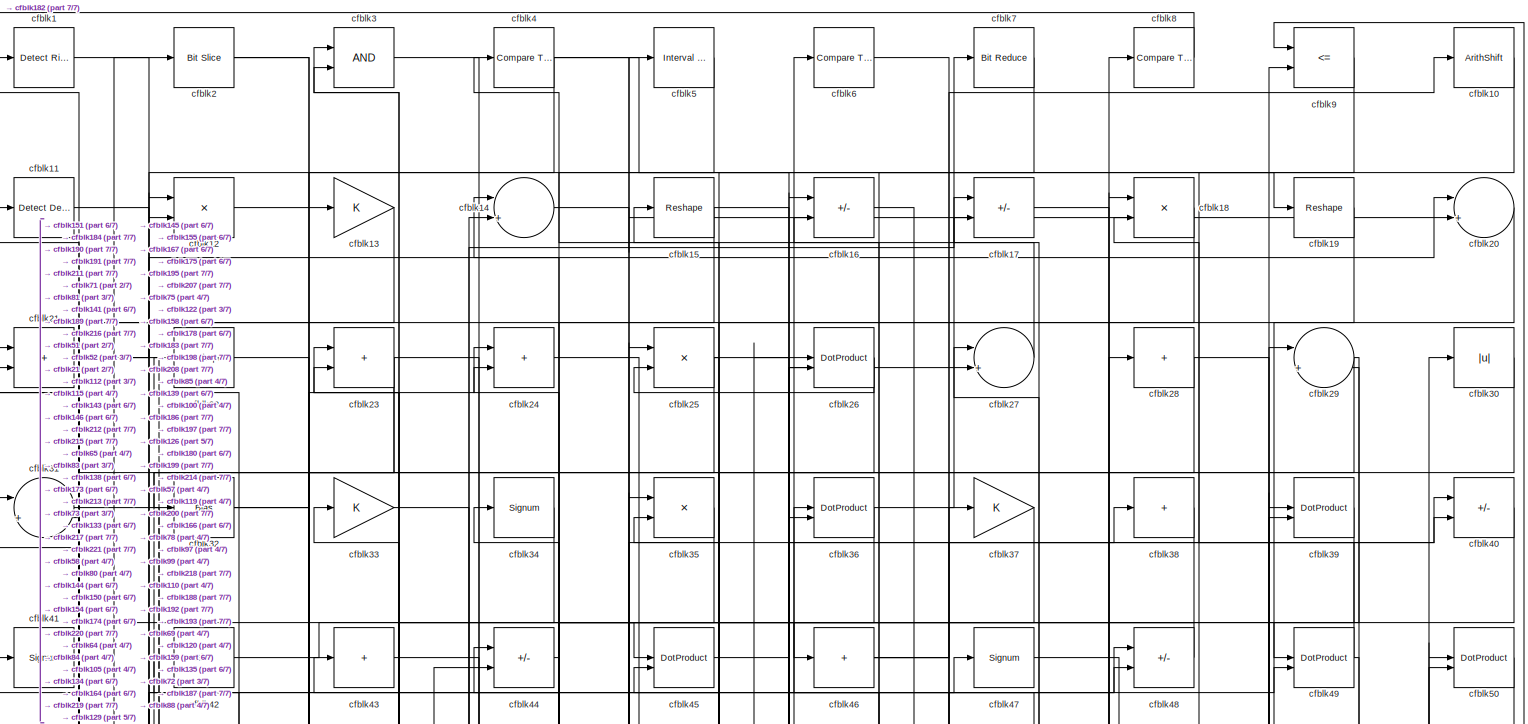
[diagram: root canvas - part 1/7, full width, top band]
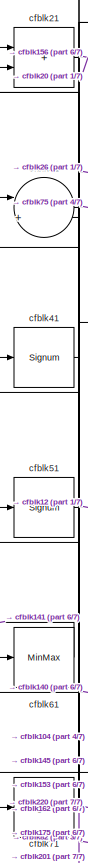
[diagram: root canvas - part 2/7, top left region]
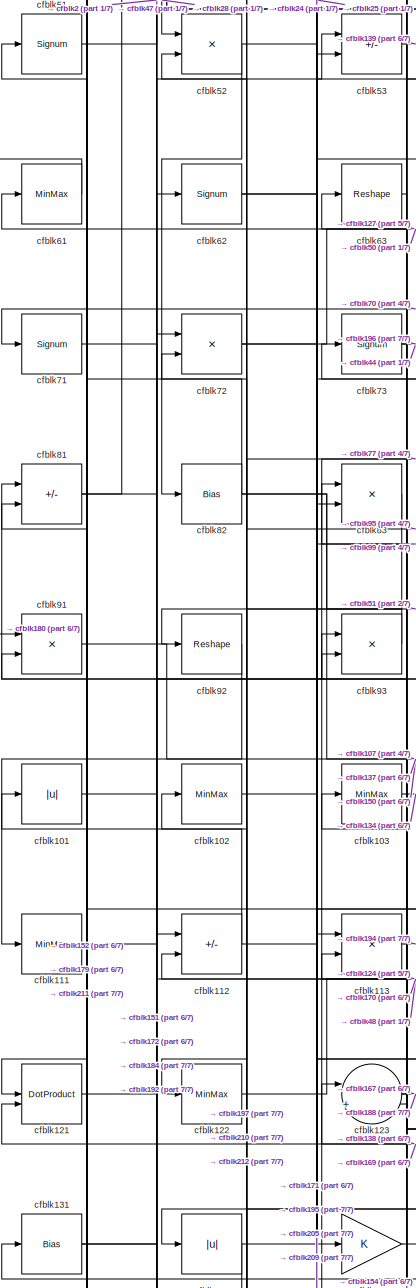
[diagram: root canvas - part 3/7, middle left region]
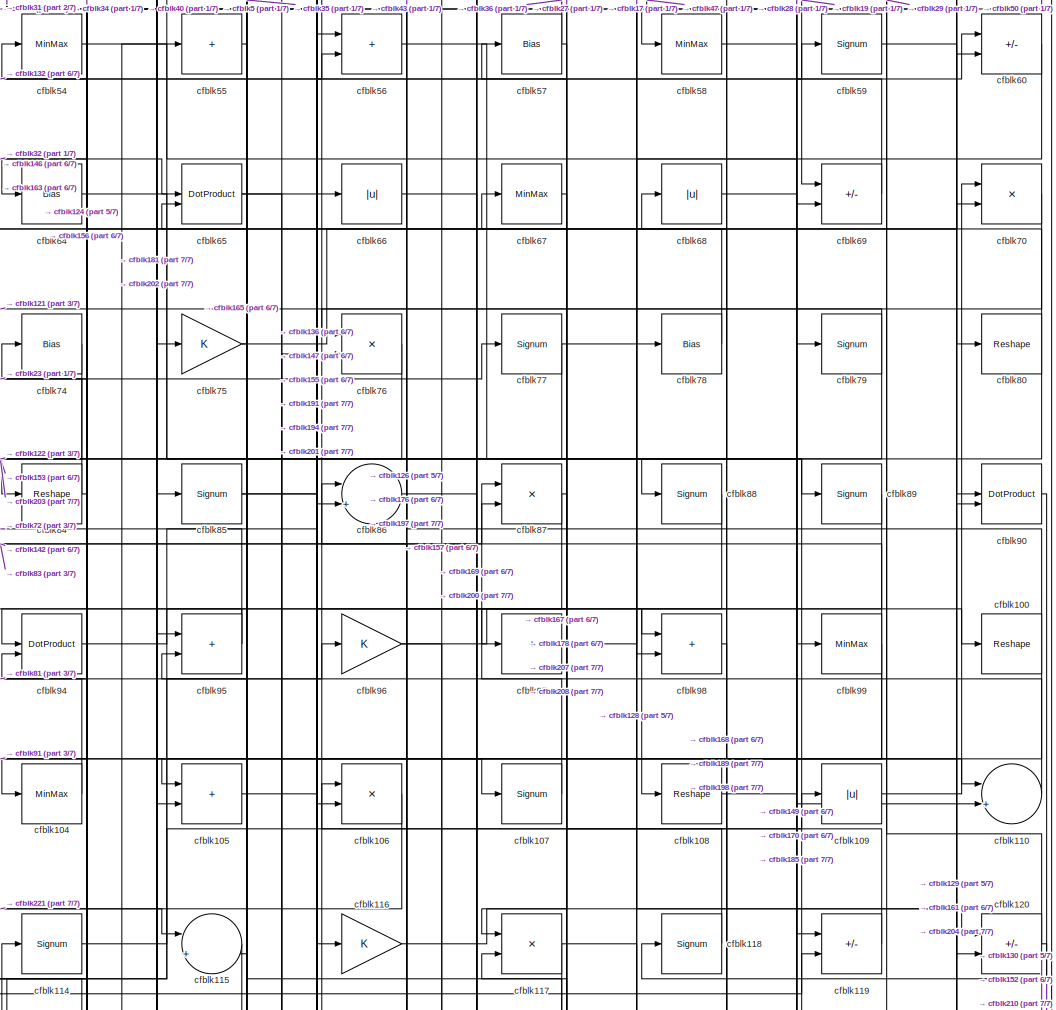
[diagram: root canvas - part 4/7, central region]
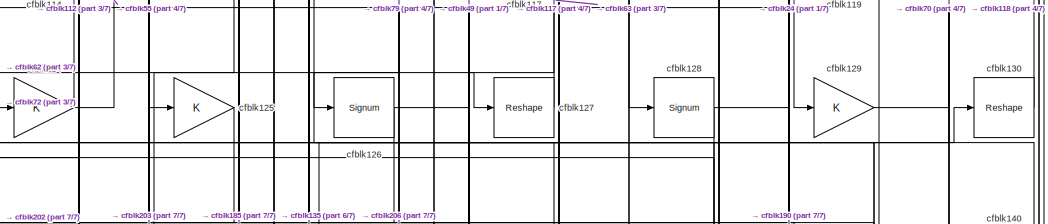
[diagram: root canvas - part 5/7, central region]
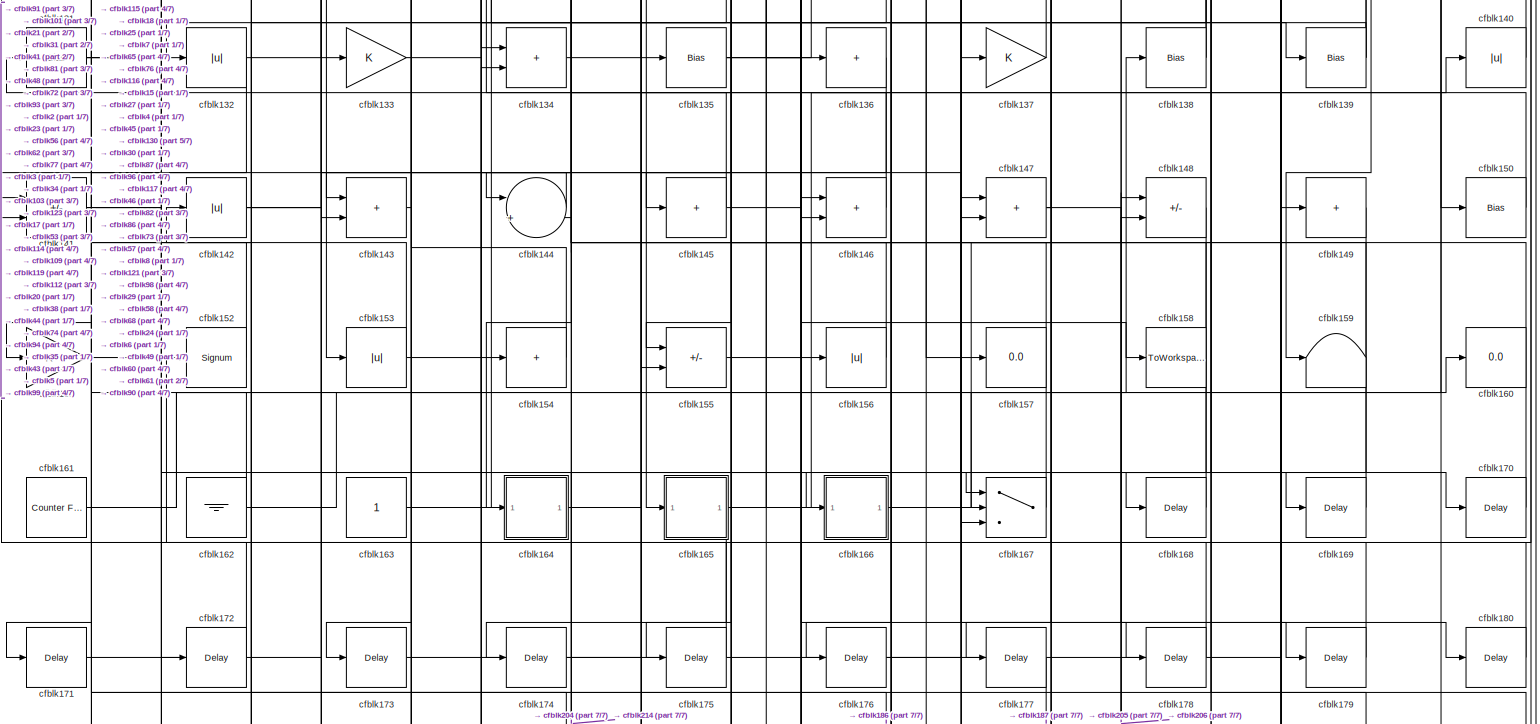
[diagram: root canvas - part 6/7, full width, bottom band]
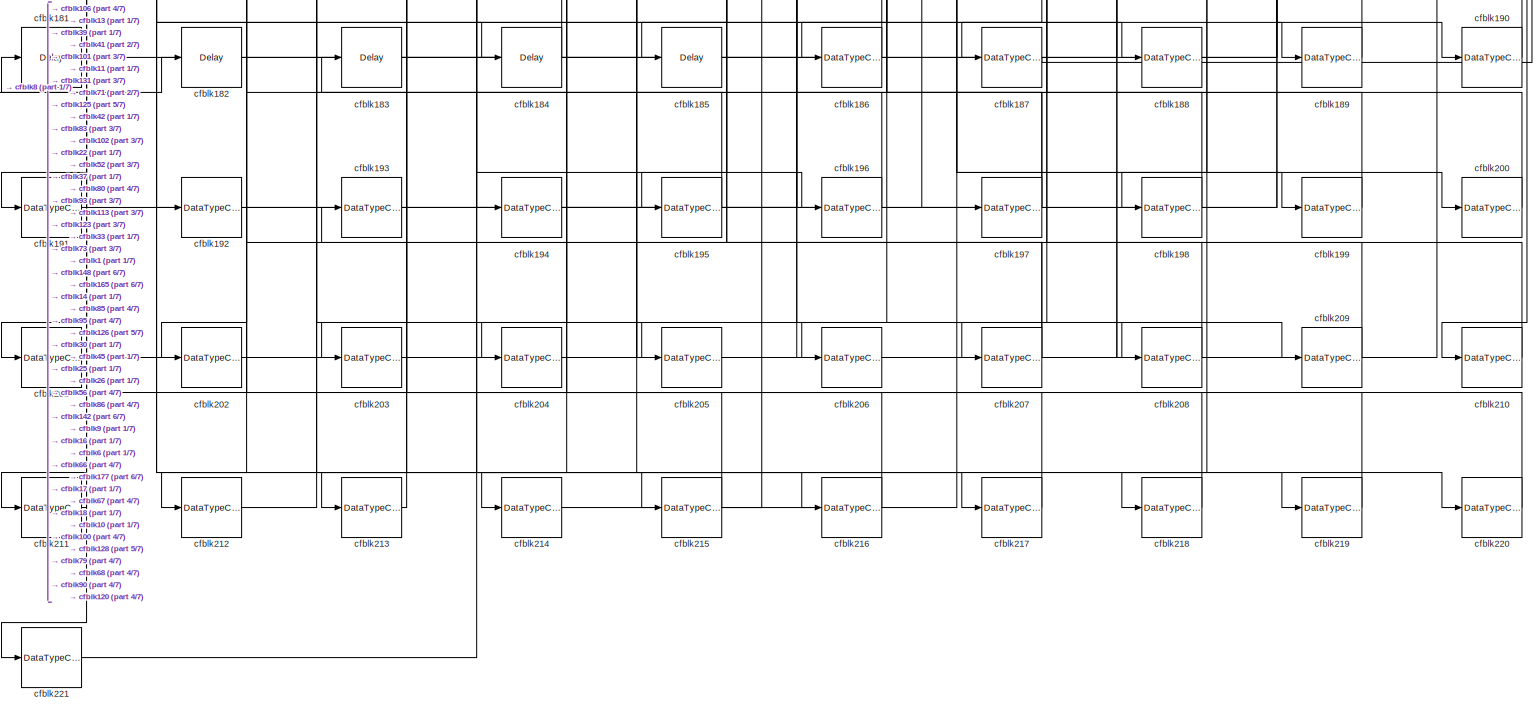
[diagram: root canvas - part 7/7, full width, bottom band]
MODEL slx_98060ab8708d
KIND model
CONFIG AbsTol = auto
CONFIG EnableMultiTasking = off
CONFIG FixedStep = auto
CONFIG MaxStep = auto
CONFIG MinStep = auto
CONFIG RelTol = 1e-3
CONFIG SampleTimeConstraint = Unconstrained
CONFIG SolverName = VariableStepAuto
CONFIG StartTime = 0.0
CONFIG StopTime = 10.0
BLOCK [Reference] cfblk1  REF=hdlsllib/Logic and Bit
Operations/Detect Rise
Positive
  SourceBlock = hdlsllib/Logic and Bit\nOperations/Detect Rise\nPositive
  SourceType = Detect Rise Positive
BLOCK [ArithShift] cfblk10
  BitShiftNumber = 8
  InputPortMap = u0
BLOCK [Reshape] cfblk100
BLOCK [Abs] cfblk101
  SaturateOnIntegerOverflow = off
BLOCK [MinMax] cfblk102
BLOCK [MinMax] cfblk103
BLOCK [MinMax] cfblk104
BLOCK [Sum] cfblk105
  IconShape = rectangular
BLOCK [Product] cfblk106
  Inputs = */
  RndMeth = Zero
  SaturateOnIntegerOverflow = on
BLOCK [Signum] cfblk107
BLOCK [Reshape] cfblk108
BLOCK [Abs] cfblk109
  SaturateOnIntegerOverflow = off
BLOCK [Reference] cfblk11  REF=simulink/Logic and Bit
Operations/Detect
Decrease
  LibrarySourceBlock = hdlsllib/Logic and Bit\nOperations/Detect\nDecrease
  SourceBlock = simulink/Logic and Bit\nOperations/Detect\nDecrease
  SourceType = Detect Decrease
BLOCK [Sum] cfblk110
  Inputs = |++
BLOCK [MinMax] cfblk111
BLOCK [Sum] cfblk112
  IconShape = rectangular
  Inputs = +-
BLOCK [Product] cfblk113
  Inputs = */
  RndMeth = Zero
  SaturateOnIntegerOverflow = on
BLOCK [Signum] cfblk114
BLOCK [Sum] cfblk115
  Inputs = |++
BLOCK [Gain] cfblk116
BLOCK [Product] cfblk117
  Inputs = */
  RndMeth = Zero
  SaturateOnIntegerOverflow = on
BLOCK [Signum] cfblk118
BLOCK [Sum] cfblk119
  IconShape = rectangular
  Inputs = +-
BLOCK [Product] cfblk12
  Inputs = */
  RndMeth = Zero
  SaturateOnIntegerOverflow = on
BLOCK [Sum] cfblk120
  IconShape = rectangular
  Inputs = +-
BLOCK [DotProduct] cfblk121
  OutDataTypeStr = Inherit: Inherit via internal rule
BLOCK [MinMax] cfblk122
BLOCK [Sum] cfblk123
  Inputs = |++
BLOCK [Gain] cfblk124
BLOCK [Gain] cfblk125
BLOCK [Signum] cfblk126
BLOCK [Reshape] cfblk127
BLOCK [Signum] cfblk128
BLOCK [Gain] cfblk129
BLOCK [Gain] cfblk13
BLOCK [Reshape] cfblk130
BLOCK [Bias] cfblk131
  Bias = 0.0
  SaturateOnIntegerOverflow = off
BLOCK [Abs] cfblk132
  SaturateOnIntegerOverflow = off
BLOCK [Gain] cfblk133
BLOCK [Sum] cfblk134
  IconShape = rectangular
BLOCK [Bias] cfblk135
  Bias = 0.0
  SaturateOnIntegerOverflow = off
BLOCK [Sum] cfblk136
  IconShape = rectangular
  Inputs = +
BLOCK [Gain] cfblk137
BLOCK [Bias] cfblk138
  Bias = 0.0
  SaturateOnIntegerOverflow = off
BLOCK [Bias] cfblk139
  Bias = 0.0
  SaturateOnIntegerOverflow = off
BLOCK [Sum] cfblk14
  Inputs = |++
BLOCK [Abs] cfblk140
  SaturateOnIntegerOverflow = off
BLOCK [Sum] cfblk141
  IconShape = rectangular
  Inputs = +-
BLOCK [Abs] cfblk142
  SaturateOnIntegerOverflow = off
BLOCK [Sum] cfblk143
  IconShape = rectangular
BLOCK [Sum] cfblk144
  Inputs = |++
BLOCK [Sum] cfblk145
  IconShape = rectangular
  Inputs = +
BLOCK [Sum] cfblk146
  IconShape = rectangular
BLOCK [Sum] cfblk147
  IconShape = rectangular
BLOCK [Sum] cfblk148
  IconShape = rectangular
  Inputs = +-
BLOCK [Sum] cfblk149
  IconShape = rectangular
  Inputs = +
BLOCK [Reshape] cfblk15
BLOCK [Bias] cfblk150
  Bias = 0.0
  SaturateOnIntegerOverflow = off
BLOCK [Gain] cfblk151
BLOCK [Signum] cfblk152
BLOCK [Abs] cfblk153
  SaturateOnIntegerOverflow = off
BLOCK [Sum] cfblk154
  IconShape = rectangular
  Inputs = +
BLOCK [Sum] cfblk155
  IconShape = rectangular
  Inputs = +-
BLOCK [Abs] cfblk156
  SaturateOnIntegerOverflow = off
BLOCK [Display] cfblk157
  Decimation = 1
BLOCK [ToWorkspace] cfblk158
  MaxDataPoints = inf
  SampleTime = -1
  SaveFormat = Timeseries
  VariableName = simout
BLOCK [Terminator] cfblk159
BLOCK [Sum] cfblk16
  IconShape = rectangular
  Inputs = +-
BLOCK [Display] cfblk160
  Decimation = 1
BLOCK [Reference] cfblk161  REF=hdlsllib/Sources/Counter
Free-Running
  SourceBlock = hdlsllib/Sources/Counter\nFree-Running
  SourceType = Counter Free-Running
BLOCK [Ground] cfblk162
BLOCK [Constant] cfblk163
  SampleTime = -1
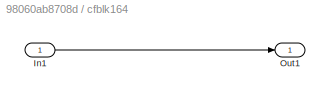
BLOCK [SubSystem] cfblk164
  LibrarySourceBlock = hdlsllib/Ports &\nSubsystems/Subsystem
BLOCK [Inport] cfblk164/In1
BLOCK [Outport] cfblk164/Out1
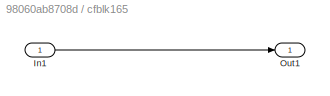
BLOCK [SubSystem] cfblk165
  LibrarySourceBlock = hdlsllib/Ports &\nSubsystems/Subsystem
BLOCK [Inport] cfblk165/In1
BLOCK [Outport] cfblk165/Out1
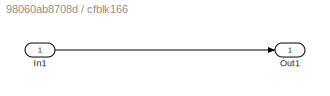
BLOCK [SubSystem] cfblk166
  LibrarySourceBlock = hdlsllib/Ports &\nSubsystems/Subsystem
BLOCK [Inport] cfblk166/In1
BLOCK [Outport] cfblk166/Out1
BLOCK [Switch] cfblk167
  InputSameDT = off
  SaturateOnIntegerOverflow = off
BLOCK [Delay] cfblk168
  InputPortMap = u0
  SampleTime = 1
BLOCK [Delay] cfblk169
  InputPortMap = u0
  SampleTime = 1
BLOCK [Sum] cfblk17
  IconShape = rectangular
  Inputs = +-
BLOCK [Delay] cfblk170
  InputPortMap = u0
  SampleTime = 1
BLOCK [Delay] cfblk171
  InputPortMap = u0
  SampleTime = 1
BLOCK [Delay] cfblk172
  InputPortMap = u0
  SampleTime = 1
BLOCK [Delay] cfblk173
  InputPortMap = u0
  SampleTime = 1
BLOCK [Delay] cfblk174
  InputPortMap = u0
  SampleTime = 1
BLOCK [Delay] cfblk175
  InputPortMap = u0
  SampleTime = 1
BLOCK [Delay] cfblk176
  InputPortMap = u0
  SampleTime = 1
BLOCK [Delay] cfblk177
  InputPortMap = u0
  SampleTime = 1
BLOCK [Delay] cfblk178
  InputPortMap = u0
  SampleTime = 1
BLOCK [Delay] cfblk179
  InputPortMap = u0
  SampleTime = 1
BLOCK [Product] cfblk18
  Inputs = */
  RndMeth = Zero
  SaturateOnIntegerOverflow = on
BLOCK [Delay] cfblk180
  InputPortMap = u0
  SampleTime = 1
BLOCK [Delay] cfblk181
  InputPortMap = u0
  SampleTime = 1
BLOCK [Delay] cfblk182
  InputPortMap = u0
  SampleTime = 1
BLOCK [Delay] cfblk183
  InputPortMap = u0
  SampleTime = 1
BLOCK [Delay] cfblk184
  InputPortMap = u0
  SampleTime = 1
BLOCK [Delay] cfblk185
  InputPortMap = u0
  SampleTime = 1
BLOCK [DataTypeConversion] cfblk186
  OutDataTypeStr = uint8
  RndMeth = Floor
  SaturateOnIntegerOverflow = off
BLOCK [DataTypeConversion] cfblk187
  OutDataTypeStr = uint8
  RndMeth = Floor
  SaturateOnIntegerOverflow = off
BLOCK [DataTypeConversion] cfblk188
  OutDataTypeStr = uint8
  RndMeth = Floor
  SaturateOnIntegerOverflow = off
BLOCK [DataTypeConversion] cfblk189
  OutDataTypeStr = uint8
  RndMeth = Floor
  SaturateOnIntegerOverflow = off
BLOCK [Reshape] cfblk19
BLOCK [DataTypeConversion] cfblk190
  OutDataTypeStr = uint8
  RndMeth = Floor
  SaturateOnIntegerOverflow = off
BLOCK [DataTypeConversion] cfblk191
  OutDataTypeStr = uint8
  RndMeth = Floor
  SaturateOnIntegerOverflow = off
BLOCK [DataTypeConversion] cfblk192
  OutDataTypeStr = uint8
  RndMeth = Floor
  SaturateOnIntegerOverflow = off
BLOCK [DataTypeConversion] cfblk193
  OutDataTypeStr = uint8
  RndMeth = Floor
  SaturateOnIntegerOverflow = off
BLOCK [DataTypeConversion] cfblk194
  OutDataTypeStr = uint8
  RndMeth = Floor
  SaturateOnIntegerOverflow = off
BLOCK [DataTypeConversion] cfblk195
  OutDataTypeStr = uint8
  RndMeth = Floor
  SaturateOnIntegerOverflow = off
BLOCK [DataTypeConversion] cfblk196
  OutDataTypeStr = uint8
  RndMeth = Floor
  SaturateOnIntegerOverflow = off
BLOCK [DataTypeConversion] cfblk197
  RndMeth = Floor
  SaturateOnIntegerOverflow = off
BLOCK [DataTypeConversion] cfblk198
  OutDataTypeStr = uint8
  RndMeth = Floor
  SaturateOnIntegerOverflow = off
BLOCK [DataTypeConversion] cfblk199
  OutDataTypeStr = uint8
  RndMeth = Floor
  SaturateOnIntegerOverflow = off
BLOCK [Reference] cfblk2  REF=hdlsllib/Logic and Bit
Operations/Bit Slice
  SourceBlock = hdlsllib/Logic and Bit\nOperations/Bit Slice
  SourceType = Bit Slice
BLOCK [Sum] cfblk20
  Inputs = |++
BLOCK [DataTypeConversion] cfblk200
  OutDataTypeStr = uint8
  RndMeth = Floor
  SaturateOnIntegerOverflow = off
BLOCK [DataTypeConversion] cfblk201
  OutDataTypeStr = uint8
  RndMeth = Floor
  SaturateOnIntegerOverflow = off
BLOCK [DataTypeConversion] cfblk202
  OutDataTypeStr = uint8
  RndMeth = Floor
  SaturateOnIntegerOverflow = off
BLOCK [DataTypeConversion] cfblk203
  OutDataTypeStr = uint8
  RndMeth = Floor
  SaturateOnIntegerOverflow = off
BLOCK [DataTypeConversion] cfblk204
  OutDataTypeStr = uint8
  RndMeth = Floor
  SaturateOnIntegerOverflow = off
BLOCK [DataTypeConversion] cfblk205
  OutDataTypeStr = uint8
  RndMeth = Floor
  SaturateOnIntegerOverflow = off
BLOCK [DataTypeConversion] cfblk206
  OutDataTypeStr = uint8
  RndMeth = Floor
  SaturateOnIntegerOverflow = off
BLOCK [DataTypeConversion] cfblk207
  RndMeth = Floor
  SaturateOnIntegerOverflow = off
BLOCK [DataTypeConversion] cfblk208
  OutDataTypeStr = uint8
  RndMeth = Floor
  SaturateOnIntegerOverflow = off
BLOCK [DataTypeConversion] cfblk209
  OutDataTypeStr = uint8
  RndMeth = Floor
  SaturateOnIntegerOverflow = off
BLOCK [Sum] cfblk21
  IconShape = rectangular
BLOCK [DataTypeConversion] cfblk210
  OutDataTypeStr = uint8
  RndMeth = Floor
  SaturateOnIntegerOverflow = off
BLOCK [DataTypeConversion] cfblk211
  OutDataTypeStr = uint8
  RndMeth = Floor
  SaturateOnIntegerOverflow = off
BLOCK [DataTypeConversion] cfblk212
  OutDataTypeStr = uint8
  RndMeth = Floor
  SaturateOnIntegerOverflow = off
BLOCK [DataTypeConversion] cfblk213
  OutDataTypeStr = uint8
  RndMeth = Floor
  SaturateOnIntegerOverflow = off
BLOCK [DataTypeConversion] cfblk214
  OutDataTypeStr = uint8
  RndMeth = Floor
  SaturateOnIntegerOverflow = off
BLOCK [DataTypeConversion] cfblk215
  RndMeth = Floor
  SaturateOnIntegerOverflow = off
BLOCK [DataTypeConversion] cfblk216
  OutDataTypeStr = uint8
  RndMeth = Floor
  SaturateOnIntegerOverflow = off
BLOCK [DataTypeConversion] cfblk217
  OutDataTypeStr = uint8
  RndMeth = Floor
  SaturateOnIntegerOverflow = off
BLOCK [DataTypeConversion] cfblk218
  OutDataTypeStr = uint8
  RndMeth = Floor
  SaturateOnIntegerOverflow = off
BLOCK [DataTypeConversion] cfblk219
  OutDataTypeStr = uint8
  RndMeth = Floor
  SaturateOnIntegerOverflow = off
BLOCK [Reshape] cfblk22
BLOCK [DataTypeConversion] cfblk220
  OutDataTypeStr = uint8
  RndMeth = Floor
  SaturateOnIntegerOverflow = off
BLOCK [DataTypeConversion] cfblk221
  OutDataTypeStr = uint8
  RndMeth = Floor
  SaturateOnIntegerOverflow = off
BLOCK [Sum] cfblk23
  IconShape = rectangular
BLOCK [Sum] cfblk24
  IconShape = rectangular
BLOCK [Product] cfblk25
  Inputs = */
  RndMeth = Zero
  SaturateOnIntegerOverflow = on
BLOCK [DotProduct] cfblk26
  OutDataTypeStr = Inherit: Inherit via internal rule
BLOCK [Sum] cfblk27
  Inputs = |++
BLOCK [Sum] cfblk28
  IconShape = rectangular
  Inputs = +
BLOCK [Sum] cfblk29
  Inputs = |++
BLOCK [Logic] cfblk3
  AllPortsSameDT = off
  OutDataTypeStr = boolean
BLOCK [Abs] cfblk30
  SaturateOnIntegerOverflow = off
BLOCK [Sum] cfblk31
  Inputs = |++
BLOCK [Bias] cfblk32
  Bias = 0.0
  SaturateOnIntegerOverflow = off
BLOCK [Gain] cfblk33
BLOCK [Signum] cfblk34
BLOCK [Product] cfblk35
  Inputs = */
  RndMeth = Zero
  SaturateOnIntegerOverflow = on
BLOCK [DotProduct] cfblk36
  OutDataTypeStr = Inherit: Inherit via internal rule
BLOCK [Gain] cfblk37
BLOCK [Sum] cfblk38
  IconShape = rectangular
  Inputs = +
BLOCK [DotProduct] cfblk39
  OutDataTypeStr = Inherit: Inherit via internal rule
BLOCK [Reference] cfblk4  REF=hdlsllib/Logic and Bit
Operations/Compare
To Zero
  SourceBlock = hdlsllib/Logic and Bit\nOperations/Compare\nTo Zero
  SourceType = Compare To Zero
BLOCK [Sum] cfblk40
  IconShape = rectangular
  Inputs = +-
BLOCK [Signum] cfblk41
BLOCK [Bias] cfblk42
  Bias = 0.0
  SaturateOnIntegerOverflow = off
BLOCK [Sum] cfblk43
  IconShape = rectangular
  Inputs = +
BLOCK [Sum] cfblk44
  IconShape = rectangular
  Inputs = +-
BLOCK [DotProduct] cfblk45
  OutDataTypeStr = Inherit: Inherit via internal rule
BLOCK [Sum] cfblk46
  IconShape = rectangular
  Inputs = +
BLOCK [Signum] cfblk47
BLOCK [Sum] cfblk48
  IconShape = rectangular
  Inputs = +-
BLOCK [DotProduct] cfblk49
  OutDataTypeStr = Inherit: Inherit via internal rule
BLOCK [Reference] cfblk5  REF=hdlsllib/Logic and Bit
Operations/Interval Test
  SourceBlock = hdlsllib/Logic and Bit\nOperations/Interval Test
  SourceType = Interval Test
BLOCK [DotProduct] cfblk50
  OutDataTypeStr = Inherit: Inherit via internal rule
BLOCK [Signum] cfblk51
BLOCK [Product] cfblk52
  Inputs = */
  RndMeth = Zero
  SaturateOnIntegerOverflow = on
BLOCK [Sum] cfblk53
  IconShape = rectangular
  Inputs = +-
BLOCK [MinMax] cfblk54
BLOCK [Sum] cfblk55
  IconShape = rectangular
  Inputs = +
BLOCK [Sum] cfblk56
  IconShape = rectangular
BLOCK [Bias] cfblk57
  Bias = 0.0
  SaturateOnIntegerOverflow = off
BLOCK [MinMax] cfblk58
BLOCK [Signum] cfblk59
BLOCK [Reference] cfblk6  REF=hdlsllib/Logic and Bit
Operations/Compare
To Zero
  SourceBlock = hdlsllib/Logic and Bit\nOperations/Compare\nTo Zero
  SourceType = Compare To Zero
BLOCK [Sum] cfblk60
  IconShape = rectangular
  Inputs = +-
BLOCK [MinMax] cfblk61
BLOCK [Signum] cfblk62
BLOCK [Reshape] cfblk63
BLOCK [Bias] cfblk64
  Bias = 0.0
  SaturateOnIntegerOverflow = off
BLOCK [DotProduct] cfblk65
  OutDataTypeStr = Inherit: Inherit via internal rule
BLOCK [Abs] cfblk66
  SaturateOnIntegerOverflow = off
BLOCK [MinMax] cfblk67
BLOCK [Abs] cfblk68
  SaturateOnIntegerOverflow = off
BLOCK [Sum] cfblk69
  IconShape = rectangular
  Inputs = +-
BLOCK [Reference] cfblk7  REF=hdlsllib/Logic and Bit
Operations/Bit Reduce
  SourceBlock = hdlsllib/Logic and Bit\nOperations/Bit Reduce
  SourceType = Bit Reduce
BLOCK [Product] cfblk70
  Inputs = */
  RndMeth = Zero
  SaturateOnIntegerOverflow = on
BLOCK [Signum] cfblk71
BLOCK [Product] cfblk72
  Inputs = */
  RndMeth = Zero
  SaturateOnIntegerOverflow = on
BLOCK [Signum] cfblk73
BLOCK [Bias] cfblk74
  Bias = 0.0
  SaturateOnIntegerOverflow = off
BLOCK [Gain] cfblk75
BLOCK [Product] cfblk76
  Inputs = */
  RndMeth = Zero
  SaturateOnIntegerOverflow = on
BLOCK [Signum] cfblk77
BLOCK [Bias] cfblk78
  Bias = 0.0
  SaturateOnIntegerOverflow = off
BLOCK [Signum] cfblk79
BLOCK [Reference] cfblk8  REF=hdlsllib/Logic and Bit
Operations/Compare
To Zero
  SourceBlock = hdlsllib/Logic and Bit\nOperations/Compare\nTo Zero
  SourceType = Compare To Zero
BLOCK [Reshape] cfblk80
BLOCK [Sum] cfblk81
  IconShape = rectangular
  Inputs = +-
BLOCK [Bias] cfblk82
  Bias = 0.0
  SaturateOnIntegerOverflow = off
BLOCK [Product] cfblk83
  Inputs = */
  RndMeth = Zero
  SaturateOnIntegerOverflow = on
BLOCK [Reshape] cfblk84
BLOCK [Signum] cfblk85
BLOCK [Sum] cfblk86
  Inputs = |++
BLOCK [Product] cfblk87
  Inputs = */
  RndMeth = Zero
  SaturateOnIntegerOverflow = on
BLOCK [Signum] cfblk88
BLOCK [Signum] cfblk89
BLOCK [RelationalOperator] cfblk9
  InputSameDT = off
  Operator = <=
  OutDataTypeStr = boolean
BLOCK [DotProduct] cfblk90
  OutDataTypeStr = Inherit: Inherit via internal rule
BLOCK [Product] cfblk91
  Inputs = */
  RndMeth = Zero
  SaturateOnIntegerOverflow = on
BLOCK [Reshape] cfblk92
BLOCK [Product] cfblk93
  Inputs = */
  RndMeth = Zero
  SaturateOnIntegerOverflow = on
BLOCK [DotProduct] cfblk94
  OutDataTypeStr = Inherit: Inherit via internal rule
BLOCK [Sum] cfblk95
  IconShape = rectangular
BLOCK [Gain] cfblk96
BLOCK [Sum] cfblk97
  IconShape = rectangular
  Inputs = +
BLOCK [Sum] cfblk98
  IconShape = rectangular
BLOCK [MinMax] cfblk99
NET cfblk100:1 -> cfblk198:1, cfblk43:1
LINE cfblk101:1 -> cfblk192:1
LINE cfblk102:1 -> cfblk209:1
LINE cfblk103:1 -> cfblk134:1
LINE cfblk104:1 -> cfblk31:1
LINE cfblk105:1 -> cfblk110:1
LINE cfblk106:1 -> cfblk221:1
LINE cfblk107:1 -> cfblk81:1
LINE cfblk108:1 -> cfblk60:1
LINE cfblk109:1 -> cfblk70:1
LINE cfblk10:1 -> cfblk218:1
LINE cfblk110:1 -> cfblk87:1
LINE cfblk111:1 -> cfblk53:1
NET cfblk112:1 -> cfblk24:1, cfblk91:2
LINE cfblk113:1 -> cfblk194:1
LINE cfblk114:1 -> cfblk96:1
LINE cfblk115:1 -> cfblk165:1
LINE cfblk116:1 -> cfblk120:1
NET cfblk117:1 -> cfblk128:1, cfblk167:2
LINE cfblk118:1 -> cfblk106:1
LINE cfblk119:1 -> cfblk27:1
LINE cfblk11:1 -> cfblk189:1
NET cfblk120:1 -> cfblk210:1, cfblk29:2
LINE cfblk121:1 -> cfblk172:1
LINE cfblk122:1 -> cfblk48:1
NET cfblk123:1 -> cfblk167:3, cfblk188:1
NET cfblk124:1 -> cfblk112:2, cfblk55:1
LINE cfblk125:1 -> cfblk202:1
NET cfblk126:1 -> cfblk185:1, cfblk49:2
LINE cfblk127:1 -> cfblk63:1
NET cfblk128:1 -> cfblk190:1, cfblk206:1
LINE cfblk129:1 -> cfblk70:2
LINE cfblk12:1 -> cfblk19:1
LINE cfblk130:1 -> cfblk118:1
NET cfblk131:1 -> cfblk184:1, cfblk62:1
NET cfblk132:1 -> cfblk171:1, cfblk56:2
LINE cfblk133:1 -> cfblk17:1
LINE cfblk134:1 -> cfblk35:1
NET cfblk135:1 -> cfblk130:1, cfblk30:1
LINE cfblk136:1 -> cfblk141:2
LINE cfblk137:1 -> cfblk73:1
NET cfblk138:1 -> cfblk121:2, cfblk23:1
NET cfblk139:1 -> cfblk132:1, cfblk24:2, cfblk6:1
LINE cfblk13:1 -> cfblk211:1
LINE cfblk140:1 -> cfblk61:1
NET cfblk141:1 -> cfblk166:1, cfblk48:2
NET cfblk142:1 -> cfblk77:1, cfblk87:2
LINE cfblk143:1 -> cfblk3:2
LINE cfblk144:1 -> cfblk143:1
NET cfblk145:1 -> cfblk21:1, cfblk27:2
LINE cfblk146:1 -> cfblk114:1
NET cfblk147:1 -> cfblk179:1, cfblk57:1
LINE cfblk148:1 -> cfblk204:1
LINE cfblk149:1 -> cfblk177:1
LINE cfblk14:1 -> cfblk219:1
LINE cfblk150:1 -> cfblk44:1
LINE cfblk151:1 -> cfblk93:1
LINE cfblk152:1 -> cfblk101:1
NET cfblk153:1 -> cfblk164:1, cfblk41:1
LINE cfblk154:1 -> cfblk103:1
LINE cfblk155:1 -> cfblk116:1
LINE cfblk156:1 -> cfblk74:1
NET cfblk15:1 -> cfblk151:1, cfblk178:1
NET cfblk161:1 -> cfblk134:2, cfblk60:2
NET cfblk162:1 -> cfblk138:1, cfblk31:2
NET cfblk163:1 -> cfblk109:1, cfblk119:2
LINE cfblk164/In1:1 -> cfblk164/Out1:1
NET cfblk164:1 -> cfblk38:1, cfblk5:1
LINE cfblk165/In1:1 -> cfblk165/Out1:1
NET cfblk165:1 -> cfblk140:1, cfblk214:1, cfblk76:2
LINE cfblk166/In1:1 -> cfblk166/Out1:1
NET cfblk166:1 -> cfblk160:1, cfblk8:1
LINE cfblk167:1 -> cfblk15:1
LINE cfblk168:1 -> cfblk94:2
LINE cfblk169:1 -> cfblk123:1
LINE cfblk16:1 -> cfblk197:1
LINE cfblk170:1 -> cfblk112:1
LINE cfblk171:1 -> cfblk53:2
LINE cfblk172:1 -> cfblk72:1
LINE cfblk173:1 -> cfblk25:1
LINE cfblk174:1 -> cfblk29:1
LINE cfblk175:1 -> cfblk21:2
LINE cfblk176:1 -> cfblk147:1
LINE cfblk177:1 -> cfblk187:1
LINE cfblk178:1 -> cfblk117:2
LINE cfblk179:1 -> cfblk81:2
LINE cfblk17:1 -> cfblk78:1
LINE cfblk180:1 -> cfblk91:1
LINE cfblk181:1 -> cfblk95:1
LINE cfblk182:1 -> cfblk18:1
LINE cfblk183:1 -> cfblk26:2
LINE cfblk184:1 -> cfblk1:1
LINE cfblk185:1 -> cfblk79:1
LINE cfblk186:1 -> cfblk142:1
LINE cfblk187:1 -> cfblk9:1
LINE cfblk188:1 -> cfblk9:2
LINE cfblk189:1 -> cfblk68:1
LINE cfblk18:1 -> cfblk145:1
LINE cfblk190:1 -> cfblk11:1
LINE cfblk191:1 -> cfblk56:1
LINE cfblk192:1 -> cfblk39:1
LINE cfblk193:1 -> cfblk39:2
LINE cfblk194:1 -> cfblk86:2
LINE cfblk195:1 -> cfblk113:1
LINE cfblk196:1 -> cfblk113:2
NET cfblk197:1 -> cfblk52:2, cfblk86:1
LINE cfblk198:1 -> cfblk16:1
LINE cfblk199:1 -> cfblk16:2
LINE cfblk19:1 -> cfblk69:1
LINE cfblk1:1 -> cfblk216:1
LINE cfblk200:1 -> cfblk17:2
LINE cfblk201:1 -> cfblk66:1
LINE cfblk202:1 -> cfblk85:1
LINE cfblk203:1 -> cfblk125:1
LINE cfblk204:1 -> cfblk90:2
LINE cfblk205:1 -> cfblk148:1
LINE cfblk206:1 -> cfblk148:2
NET cfblk207:1 -> cfblk45:2, cfblk95:2
LINE cfblk208:1 -> cfblk67:1
LINE cfblk209:1 -> cfblk93:2
LINE cfblk20:1 -> cfblk154:1
LINE cfblk210:1 -> cfblk102:1
LINE cfblk211:1 -> cfblk131:1
LINE cfblk212:1 -> cfblk13:1
LINE cfblk213:1 -> cfblk183:1
LINE cfblk214:1 -> cfblk37:1
NET cfblk215:1 -> cfblk193:1, cfblk26:1
LINE cfblk216:1 -> cfblk22:1
LINE cfblk217:1 -> cfblk181:1
LINE cfblk218:1 -> cfblk33:1
LINE cfblk219:1 -> cfblk42:1
NET cfblk21:1 -> cfblk156:1, cfblk20:1
LINE cfblk220:1 -> cfblk14:1
LINE cfblk221:1 -> cfblk14:2
LINE cfblk22:1 -> cfblk215:1
NET cfblk23:1 -> cfblk143:2, cfblk32:1, cfblk80:1
LINE cfblk24:1 -> cfblk129:1
NET cfblk25:1 -> cfblk155:1, cfblk208:1, cfblk83:2
NET cfblk26:1 -> cfblk25:2, cfblk71:1
LINE cfblk27:1 -> cfblk4:1
NET cfblk28:1 -> cfblk110:2, cfblk52:1
NET cfblk29:1 -> cfblk36:2, cfblk49:1
NET cfblk2:1 -> cfblk133:1, cfblk146:2
LINE cfblk30:1 -> cfblk195:1
LINE cfblk31:1 -> cfblk75:1
NET cfblk32:1 -> cfblk115:1, cfblk65:1
LINE cfblk33:1 -> cfblk217:1
LINE cfblk34:1 -> cfblk173:1
LINE cfblk35:1 -> cfblk174:1
NET cfblk36:1 -> cfblk105:2, cfblk7:1
LINE cfblk37:1 -> cfblk213:1
LINE cfblk38:1 -> cfblk144:1
LINE cfblk39:1 -> cfblk191:1
LINE cfblk3:1 -> cfblk58:1
LINE cfblk40:1 -> cfblk64:1
LINE cfblk41:1 -> cfblk201:1
LINE cfblk42:1 -> cfblk45:1
LINE cfblk43:1 -> cfblk135:1
LINE cfblk44:1 -> cfblk144:2
LINE cfblk45:1 -> cfblk158:1
NET cfblk46:1 -> cfblk10:1, cfblk180:1, cfblk40:2
LINE cfblk47:1 -> cfblk99:1
LINE cfblk48:1 -> cfblk46:1
NET cfblk49:1 -> cfblk159:1, cfblk18:2
NET cfblk4:1 -> cfblk12:2, cfblk146:1, cfblk20:2
LINE cfblk50:1 -> cfblk88:1
LINE cfblk51:1 -> cfblk12:1
NET cfblk52:1 -> cfblk205:1, cfblk82:1
LINE cfblk53:1 -> cfblk139:1
LINE cfblk54:1 -> cfblk69:2
LINE cfblk55:1 -> cfblk105:1
LINE cfblk56:1 -> cfblk89:1
NET cfblk57:1 -> cfblk36:1, cfblk97:1
LINE cfblk58:1 -> cfblk170:1
LINE cfblk59:1 -> cfblk90:1
LINE cfblk5:1 -> cfblk84:1
LINE cfblk60:1 -> cfblk98:2
LINE cfblk61:1 -> cfblk141:1
NET cfblk62:1 -> cfblk127:1, cfblk167:1
LINE cfblk63:1 -> cfblk123:2
LINE cfblk64:1 -> cfblk119:1
NET cfblk65:1 -> cfblk136:1, cfblk147:2
LINE cfblk66:1 -> cfblk200:1
LINE cfblk67:1 -> cfblk207:1
LINE cfblk68:1 -> cfblk149:1
LINE cfblk69:1 -> cfblk3:1
LINE cfblk6:1 -> cfblk199:1
LINE cfblk70:1 -> cfblk121:1
LINE cfblk71:1 -> cfblk220:1
NET cfblk72:1 -> cfblk124:1, cfblk50:1
NET cfblk73:1 -> cfblk196:1, cfblk44:2
LINE cfblk74:1 -> cfblk153:1
NET cfblk75:1 -> cfblk35:2, cfblk50:2
LINE cfblk76:1 -> cfblk104:1
NET cfblk77:1 -> cfblk120:2, cfblk122:1
LINE cfblk78:1 -> cfblk65:2
NET cfblk79:1 -> cfblk126:1, cfblk76:1
LINE cfblk7:1 -> cfblk175:1
NET cfblk80:1 -> cfblk203:1, cfblk34:1
NET cfblk81:1 -> cfblk2:1, cfblk47:1
NET cfblk82:1 -> cfblk137:1, cfblk150:1, cfblk51:1
LINE cfblk83:1 -> cfblk212:1
NET cfblk84:1 -> cfblk23:2, cfblk54:1
NET cfblk85:1 -> cfblk40:1, cfblk59:1
LINE cfblk86:1 -> cfblk169:1
NET cfblk87:1 -> cfblk117:1, cfblk176:1
LINE cfblk88:1 -> cfblk108:1
LINE cfblk89:1 -> cfblk106:2
LINE cfblk8:1 -> cfblk182:1
LINE cfblk90:1 -> cfblk152:1
LINE cfblk91:1 -> cfblk107:1
LINE cfblk92:1 -> cfblk111:1
LINE cfblk93:1 -> cfblk92:1
LINE cfblk94:1 -> cfblk98:1
NET cfblk95:1 -> cfblk72:2, cfblk94:1
NET cfblk96:1 -> cfblk100:1, cfblk157:1
LINE cfblk97:1 -> cfblk28:1
LINE cfblk98:1 -> cfblk168:1
NET cfblk99:1 -> cfblk115:2, cfblk155:2, cfblk83:1
LINE cfblk9:1 -> cfblk186:1
note: NET lines group one-source signal fan-out (src -> all destinations, sorted); 1:1 wires keep LINE
